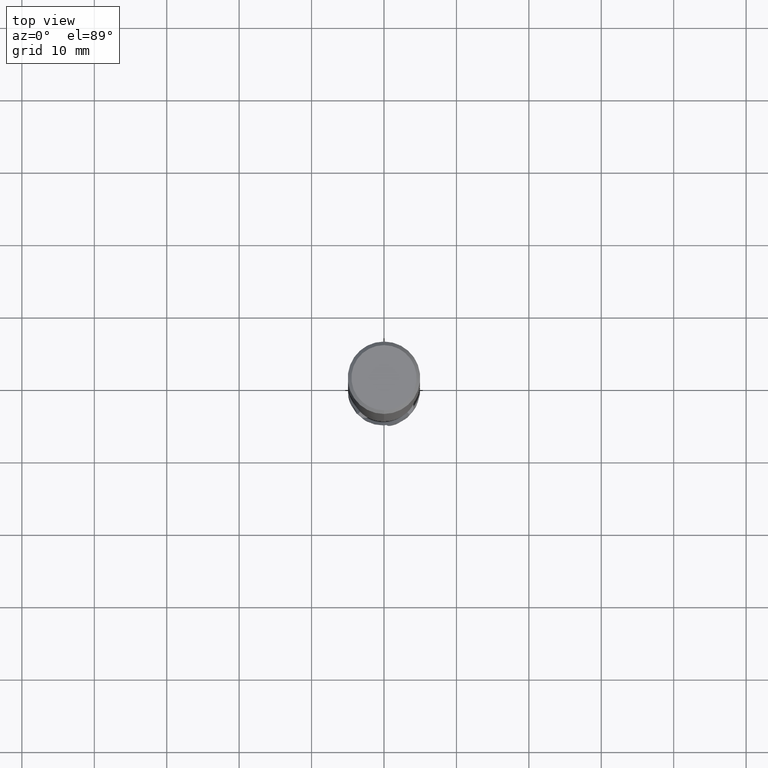
[diagram: clean part render]
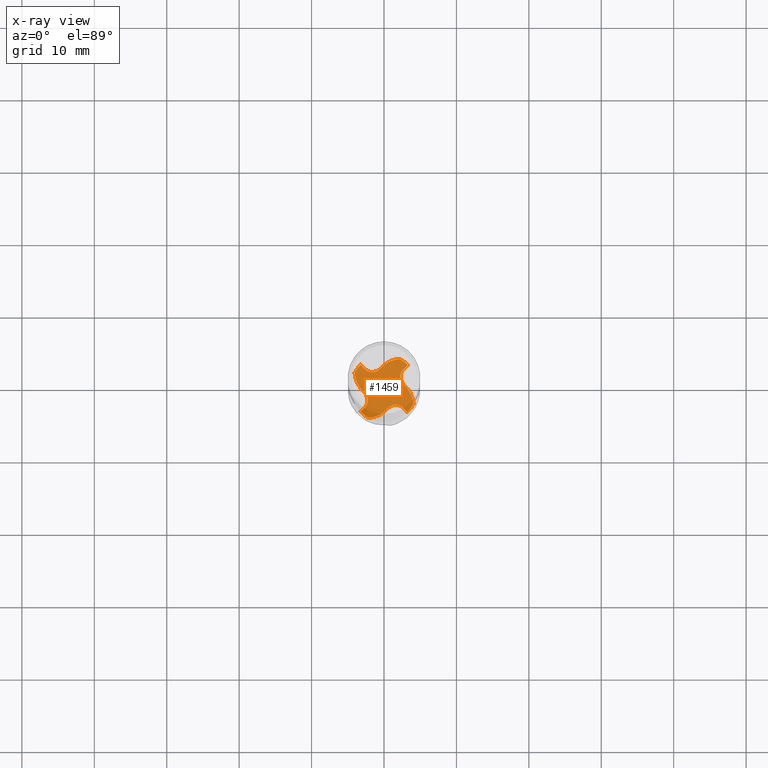
[diagram: x-ray — body ghosted, one internal face saturated and labeled with its STEP entity id]
A machine part, top view, then the same camera in x-ray: the body is ghosted and one INTERNAL B-rep face — a face not visible from any outside direction — is saturated and labeled: STEP entity #1459.
In plain terms, the highlighted planar face has unit normal (0, 0, -1).
Its self-contained STEP definition (entity closure, byte-faithful):
#537=VERTEX_POINT('',#1564);
#551=VERTEX_POINT('',#1578);
#613=VERTEX_POINT('',#1647);
#629=VERTEX_POINT('',#1664);
#655=EDGE_CURVE('',#1085,#1071,#1692,.T.);
#661=EDGE_CURVE('',#919,#537,#1698,.T.);
#681=EDGE_CURVE('',#967,#1325,#1719,.T.);
#751=VERTEX_POINT('',#1801);
#797=EDGE_CURVE('',#1325,#807,#1850,.T.);
#807=VERTEX_POINT('',#1860);
#825=VERTEX_POINT('',#1878);
#845=EDGE_CURVE('',#551,#919,#1901,.T.);
#907=VERTEX_POINT('',#1966);
#919=VERTEX_POINT('',#1979);
#929=EDGE_CURVE('',#1051,#751,#1990,.T.);
#967=VERTEX_POINT('',#2031);
#1003=VERTEX_POINT('',#2070);
#1015=EDGE_CURVE('',#825,#629,#2083,.T.);
#1021=EDGE_CURVE('',#1003,#907,#2089,.T.);
#1035=EDGE_CURVE('',#807,#1447,#2105,.T.);
#1051=VERTEX_POINT('',#2121);
#1071=VERTEX_POINT('',#2145);
#1085=VERTEX_POINT('',#2160);
#1143=EDGE_CURVE('',#537,#825,#2226,.T.);
#1189=EDGE_CURVE('',#907,#551,#2280,.T.);
#1325=VERTEX_POINT('',#2433);
#1339=EDGE_CURVE('',#1071,#967,#2448,.T.);
#1407=EDGE_CURVE('',#751,#1085,#2519,.T.);
#1447=VERTEX_POINT('',#2563);
#1449=EDGE_CURVE('',#1447,#613,#2565,.T.);
#1459=ADVANCED_FACE('',(#2576),#2577,.T.);
#1497=EDGE_CURVE('',#629,#1051,#2617,.T.);
#1499=EDGE_CURVE('',#613,#1003,#2619,.T.);
#1564=CARTESIAN_POINT('',(3.23073937328361,-3.27442561442691,-86.0));
#1578=CARTESIAN_POINT('',(2.6646436161997,0.609676675135802,-86.0000000000036));
#1647=CARTESIAN_POINT('',(2.14627587812099,4.06854271914355,-86.0));
#1664=CARTESIAN_POINT('',(0.609676675135773,-2.66464361619967,-86.0000000000036));
#1692=CIRCLE('',#3499,1.4375);
#1698=CIRCLE('',#3507,4.59995);
#1719=CIRCLE('',#3896,4.59995);
#1801=CARTESIAN_POINT('',(-3.27442561442691,-3.23073937328361,-86.0));
#1850=LINE('',#4953,#4954);
#1860=CARTESIAN_POINT('',(-2.64256283046043,2.6782957150138,-86.0000000000036));
#1878=CARTESIAN_POINT('',(2.64256283046041,-2.67829571501377,-86.0000000000036));
#1901=CIRCLE('',#5353,3.978);
#1966=CARTESIAN_POINT('',(2.6782957150138,2.64256283046043,-86.0000000000036));
#1979=CARTESIAN_POINT('',(4.06854271914185,-2.14627587812421,-86.0000000000036));
#1990=CIRCLE('',#6471,4.59995);
#2031=CARTESIAN_POINT('',(-4.06854271914353,2.14627587812103,-86.0));
#2070=CARTESIAN_POINT('',(3.27442561442686,3.23073937328365,-86.0000000000036));
#2083=CIRCLE('',#7036,1.4375);
#2089=LINE('',#7133,#7134);
#2105=CIRCLE('',#7181,1.4375);
#2121=CARTESIAN_POINT('',(-2.14627587812101,-4.06854271914354,-86.0));
#2145=CARTESIAN_POINT('',(-2.66464361619967,-0.609676675135773,-86.0000000000036));
#2160=CARTESIAN_POINT('',(-2.67829571501377,-2.64256283046041,-86.0000000000036));
#2226=LINE('',#8040,#8041);
#2280=CIRCLE('',#8145,1.4375);
#2433=CARTESIAN_POINT('',(-3.23073937328361,3.27442561442691,-86.0));
#2448=CIRCLE('',#9064,3.978);
#2519=LINE('',#9532,#9533);
#2563=CARTESIAN_POINT('',(-0.609676675135802,2.6646436161997,-86.0000000000036));
#2565=CIRCLE('',#10117,3.978);
#2576=FACE_OUTER_BOUND('',#10137,.T.);
#2577=PLANE('',#10138);
#2617=CIRCLE('',#10248,3.978);
#2619=CIRCLE('',#10251,4.59995);
#3499=AXIS2_PLACEMENT_3D('',#10686,#10687,#10688);
#3507=AXIS2_PLACEMENT_3D('',#10692,#10693,#10694);
#3896=AXIS2_PLACEMENT_3D('',#10705,#10706,#10707);
#4953=CARTESIAN_POINT('',(-2.64256283046043,2.6782957150138,-86.0000000000036));
#4954=VECTOR('',#10868,0.999999999999999);
#5353=AXIS2_PLACEMENT_3D('',#10904,#10905,#10906);
#6471=AXIS2_PLACEMENT_3D('',#10950,#10951,#10952);
#7036=AXIS2_PLACEMENT_3D('',#11024,#11025,#11026);
#7133=CARTESIAN_POINT('',(2.6782957150138,2.64256283046043,-86.0000000000036));
#7134=VECTOR('',#11027,0.999999999999999);
#7181=AXIS2_PLACEMENT_3D('',#11045,#11046,#11047);
#8040=CARTESIAN_POINT('',(2.64256283046041,-2.67829571501377,-86.0000000000036));
#8041=VECTOR('',#11191,0.999999999999999);
#8145=AXIS2_PLACEMENT_3D('',#11280,#11281,#11282);
#9064=AXIS2_PLACEMENT_3D('',#11455,#11456,#11457);
#9532=CARTESIAN_POINT('',(-2.67829571501377,-2.64256283046041,-86.0000000000036));
#9533=VECTOR('',#11512,0.999999999999999);
#10117=AXIS2_PLACEMENT_3D('',#11549,#11550,#11551);
#10137=EDGE_LOOP('',(#11564,#11565,#11566,#11567,#11568,#11569,#11570,#11571,#11572,#11573,#11574,#11575,#11576,#11577,#11578,#11579));
#10138=AXIS2_PLACEMENT_3D('',#11580,#11581,#11582);
#10248=AXIS2_PLACEMENT_3D('',#11625,#11626,#11627);
#10251=AXIS2_PLACEMENT_3D('',#11628,#11629,#11630);
#10686=CARTESIAN_POINT('',(-3.68791274340444,-1.61929370346056,-86.0000000000036));
#10687=DIRECTION('',(1.60427227058335E-014,-1.02695629777827E-014,1.0));
#10688=DIRECTION('',(0.711839392743751,0.702342280471714,-4.20709370761312E-015));
#10692=CARTESIAN_POINT('',(0.0,0.0,-86.0));
#10693=DIRECTION('',(0.0,0.0,-1.0));
#10694=DIRECTION('',(0.0,1.0,0.0));
#10705=CARTESIAN_POINT('',(0.0,0.0,-86.0));
#10706=DIRECTION('',(0.0,0.0,-1.0));
#10707=DIRECTION('',(0.0,1.0,0.0));
#10868=DIRECTION('',(0.702342280521233,-0.711839392694892,-4.38538094726937E-015));
#10904=CARTESIAN_POINT('',(0.100810670971413,-2.43190919887172,-86.0000000000036));
#10905=DIRECTION('',(1.60427227058335E-014,-1.02695629777827E-014,-1.0));
#10906=DIRECTION('',(0.644503002822597,0.764601778282431,2.48745684236389E-015));
#10950=CARTESIAN_POINT('',(0.0,0.0,-86.0));
#10951=DIRECTION('',(0.0,0.0,-1.0));
#10952=DIRECTION('',(0.0,1.0,0.0));
#11024=CARTESIAN_POINT('',(1.61929370346056,-3.68791274340444,-86.0000000000036));
#11025=DIRECTION('',(1.02695629777827E-014,1.60427227058335E-014,1.0));
#11026=DIRECTION('',(-0.702342280471714,0.711839392743751,-4.20709370761312E-015));
#11027=DIRECTION('',(-0.711839392694892,-0.702342280521233,-4.38538094726937E-015));
#11045=CARTESIAN_POINT('',(-1.61929370346058,3.68791274340447,-86.0000000000036));
#11046=DIRECTION('',(-1.02695629777827E-014,-1.60427227058335E-014,1.0));
#11047=DIRECTION('',(0.702342280471714,-0.711839392743751,-4.20709370761312E-015));
#11191=DIRECTION('',(-0.702342280521233,0.711839392694892,-4.38538094726937E-015));
#11280=CARTESIAN_POINT('',(3.68791274340447,1.61929370346058,-86.0000000000036));
#11281=DIRECTION('',(-1.60427227058335E-014,1.02695629777827E-014,1.0));
#11282=DIRECTION('',(-0.711839392743751,-0.702342280471714,-4.20709370761312E-015));
#11455=CARTESIAN_POINT('',(-0.100810670971384,2.43190919887175,-86.0000000000036));
#11456=DIRECTION('',(-1.60427227058335E-014,1.02695629777827E-014,-1.0));
#11457=DIRECTION('',(-0.644503002822597,-0.764601778282431,2.48745684236389E-015));
#11512=DIRECTION('',(0.711839392694892,0.702342280521233,-4.38538094726937E-015));
#11549=CARTESIAN_POINT('',(2.43190919887172,0.100810670971413,-86.0000000000036));
#11550=DIRECTION('',(1.02695629777827E-014,1.60427227058335E-014,-1.0));
#11551=DIRECTION('',(-0.764601778282431,0.644503002822597,2.48745684236389E-015));
#11564=ORIENTED_EDGE('',*,*,#1143,.T.);
#11565=ORIENTED_EDGE('',*,*,#1015,.T.);
#11566=ORIENTED_EDGE('',*,*,#1497,.T.);
#11567=ORIENTED_EDGE('',*,*,#929,.T.);
#11568=ORIENTED_EDGE('',*,*,#1407,.T.);
#11569=ORIENTED_EDGE('',*,*,#655,.T.);
#11570=ORIENTED_EDGE('',*,*,#1339,.T.);
#11571=ORIENTED_EDGE('',*,*,#681,.T.);
#11572=ORIENTED_EDGE('',*,*,#797,.T.);
#11573=ORIENTED_EDGE('',*,*,#1035,.T.);
#11574=ORIENTED_EDGE('',*,*,#1449,.T.);
#11575=ORIENTED_EDGE('',*,*,#1499,.T.);
#11576=ORIENTED_EDGE('',*,*,#1021,.T.);
#11577=ORIENTED_EDGE('',*,*,#1189,.T.);
#11578=ORIENTED_EDGE('',*,*,#845,.T.);
#11579=ORIENTED_EDGE('',*,*,#661,.T.);
#11580=CARTESIAN_POINT('',(0.0,2.299975,-86.0));
#11581=DIRECTION('',(0.0,0.0,-1.0));
#11582=DIRECTION('',(0.0,1.0,0.0));
#11625=CARTESIAN_POINT('',(-2.43190919887175,-0.100810670971384,-86.0000000000036));
#11626=DIRECTION('',(-1.02695629777827E-014,-1.60427227058335E-014,-1.0));
#11627=DIRECTION('',(0.764601778282431,-0.644503002822597,2.48745684236389E-015));
#11628=CARTESIAN_POINT('',(0.0,0.0,-86.0));
#11629=DIRECTION('',(0.0,0.0,-1.0));
#11630=DIRECTION('',(0.0,1.0,0.0));